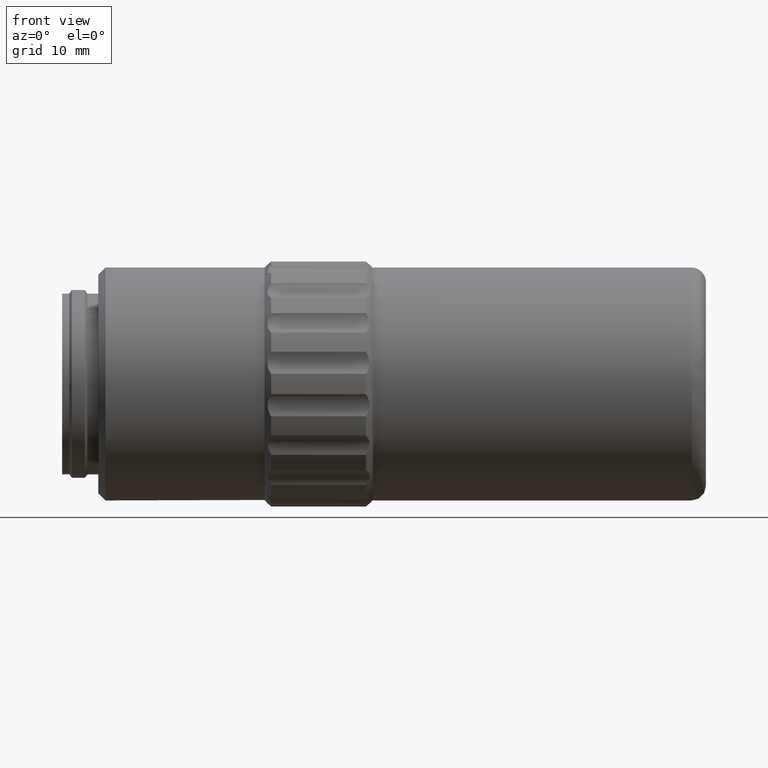
[diagram: clean part render]
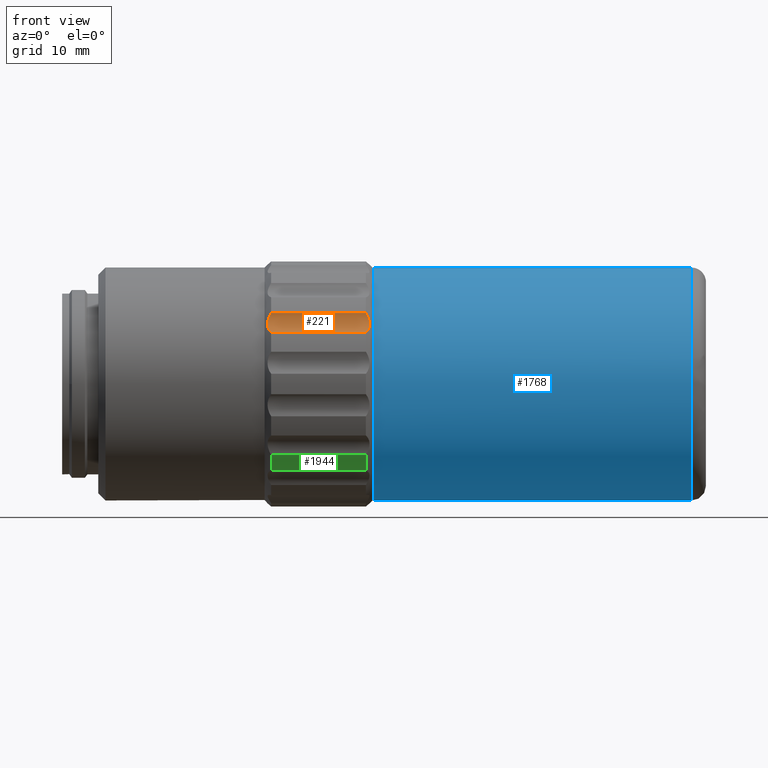
[diagram: same view with three faces highlighted in distinct colors, each labeled with its STEP entity id]
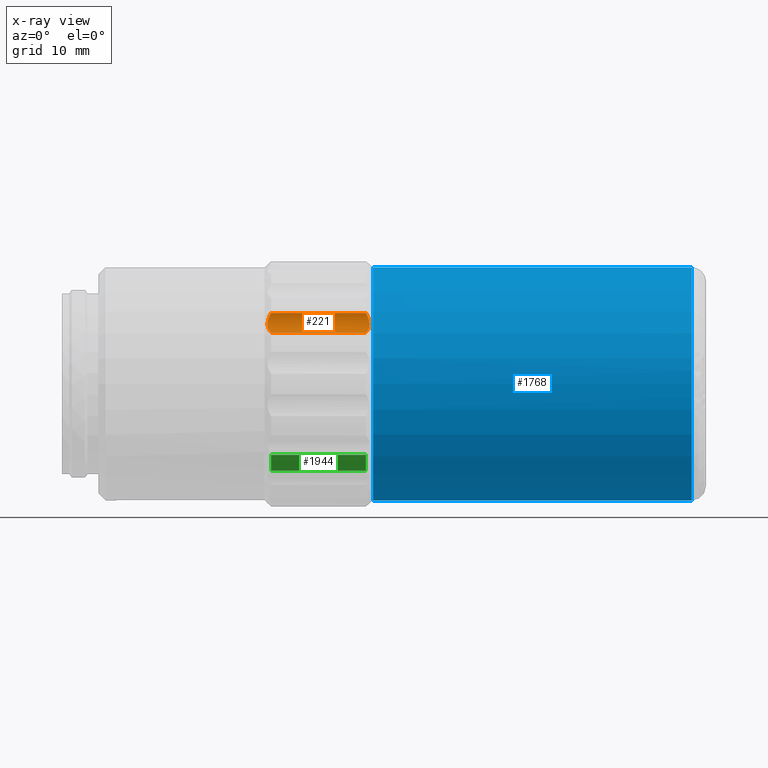
[diagram: x-ray of the same camera — body ghosted, the three highlighted faces saturated]
A machine part, front view with three faces highlighted in distinct colors.
The next image is the same camera in x-ray (body ghosted, the three faces saturated) — at least one of them is partly hidden behind the body in this view.
Their STEP definitions:

[orange] entity #221 — the highlighted cylindrical surface (edge-blend (fillet) strip) has radius 3 mm, axis along (-1, 0, 0).
#30 = CARTESIAN_POINT ( 'NONE',  ( 25.94685803487879738, 30.58621645913229870, 7.125210880294325477 ) ) ;
#37 = CARTESIAN_POINT ( 'NONE',  ( 19.34685803487881017, 32.13297559990991914, 9.804276299192830280 ) ) ;
#68 = CARTESIAN_POINT ( 'NONE',  ( 19.19974036611872137, 32.13747616120598849, 9.555558641669250619 ) ) ;
#101 = DIRECTION ( 'NONE',  ( -1.000000000000000000, 0.000000000000000000, 0.000000000000000000 ) ) ;
#102 = EDGE_CURVE ( 'NONE', #763, #752, #1012, .T. ) ;
#135 = CARTESIAN_POINT ( 'NONE',  ( 32.88806413580806520, 31.40713848021163557, 7.787761549644993231 ) ) ;
#140 = CARTESIAN_POINT ( 'NONE',  ( 19.34685803487881017, 32.13297559990991914, 9.804276299192830280 ) ) ;
#195 = CARTESIAN_POINT ( 'NONE',  ( 19.34685803487881017, 30.58621645913229514, 7.125210880294345905 ) ) ;
#221 = ADVANCED_FACE ( 'NONE', ( #575 ), #898, .F. ) ;
#269 = CARTESIAN_POINT ( 'NONE',  ( 32.85273454226017975, 31.31202075032431154, 7.683006173255041205 ) ) ;
#270 = ORIENTED_EDGE ( 'NONE', *, *, #2050, .F. ) ;
#289 = CARTESIAN_POINT ( 'NONE',  ( 32.44685803487879383, 30.58621645913232356, 7.125210880294359228 ) ) ;
#297 = CARTESIAN_POINT ( 'NONE',  ( 32.94671223884981970, 31.80451600533105250, 8.376639965934812082 ) ) ;
#308 = CARTESIAN_POINT ( 'NONE',  ( 32.93501117040977988, 31.58149741732376725, 8.010141189208871637 ) ) ;
#316 = CARTESIAN_POINT ( 'NONE',  ( 53.58686043487880823, 32.13297559990991914, 9.804276299192837385 ) ) ;
#321 = ORIENTED_EDGE ( 'NONE', *, *, #102, .F. ) ;
#360 = CARTESIAN_POINT ( 'NONE',  ( 18.94160666128826875, 31.31040182005772365, 7.681264582162548926 ) ) ;
#369 = CARTESIAN_POINT ( 'NONE',  ( 19.20000062573680566, 30.80347752111276094, 7.245459005800721108 ) ) ;
#407 = EDGE_LOOP ( 'NONE', ( #766, #1096, #270, #321 ) ) ;
#434 = EDGE_CURVE ( 'NONE', #2001, #1837, #824, .T. ) ;
#450 = CARTESIAN_POINT ( 'NONE',  ( 32.85210940846931038, 32.01351164868641774, 8.899086528648499694 ) ) ;
#468 = CARTESIAN_POINT ( 'NONE',  ( 32.93404516599888865, 31.86752573897096852, 8.507192313874586631 ) ) ;
#529 = DIRECTION ( 'NONE',  ( -1.000000000000000000, 0.000000000000000000, 0.000000000000000000 ) ) ;
#575 = FACE_OUTER_BOUND ( 'NONE', #407, .T. ) ;
#624 = B_SPLINE_CURVE_WITH_KNOTS ( 'NONE', 3,
 ( #765, #2096, #911, #450, #641, #468, #297, #1439, #308, #135, #269, #1746, #1565, #289 ),
 .UNSPECIFIED., .F., .F.,
 ( 4, 2, 2, 2, 2, 2, 4 ),
 ( 1.398578778534940505E-17, 0.0008570537395405541025, 0.001285580609310826112, 0.001714107479081098664, 0.002142634348851370999, 0.002571161218621643117, 0.003428214958162182583 ),
 .UNSPECIFIED. ) ;
#641 = CARTESIAN_POINT ( 'NONE',  ( 32.88671825240741242, 31.97150365186628918, 8.767556099430427352 ) ) ;
#704 = VECTOR ( 'NONE', #838, 1000.000000000000000 ) ;
#716 = CARTESIAN_POINT ( 'NONE',  ( 18.94098152749740649, 32.01281285169061164, 8.896813698364450573 ) ) ;
#752 = VERTEX_POINT ( 'NONE', #195 ) ;
#763 = VERTEX_POINT ( 'NONE', #1297 ) ;
#765 = CARTESIAN_POINT ( 'NONE',  ( 32.44685803487876541, 32.13297559990991914, 9.804276299192837385 ) ) ;
#766 = ORIENTED_EDGE ( 'NONE', *, *, #1529, .F. ) ;
#824 = LINE ( 'NONE', #316, #704 ) ;
#838 = DIRECTION ( 'NONE',  ( 1.000000000000000000, -0.000000000000000000, -0.000000000000000000 ) ) ;
#860 = DIRECTION ( 'NONE',  ( 0.000000000000000000, 0.000000000000000000, 1.000000000000000000 ) ) ;
#866 = CARTESIAN_POINT ( 'NONE',  ( 19.34685803487881017, 30.58621645913229514, 7.125210880294345905 ) ) ;
#898 = CYLINDRICAL_SURFACE ( 'NONE', #2095, 3.000000000000000888 ) ;
#911 = CARTESIAN_POINT ( 'NONE',  ( 32.71832649179923180, 32.11174389140475682, 9.297543592584467831 ) ) ;
#1009 = CARTESIAN_POINT ( 'NONE',  ( 18.90565193394953880, 31.96965089949758365, 8.762061639736753449 ) ) ;
#1012 = LINE ( 'NONE', #30, #1680 ) ;
#1029 = CARTESIAN_POINT ( 'NONE',  ( 18.85967090375871180, 31.57679921079038721, 8.003639195957687136 ) ) ;
#1096 = ORIENTED_EDGE ( 'NONE', *, *, #434, .F. ) ;
#1161 = CARTESIAN_POINT ( 'NONE',  ( 18.84700383090778431, 31.65835599380996968, 8.123483399945440553 ) ) ;
#1173 = CARTESIAN_POINT ( 'NONE',  ( 18.84671480941285182, 31.80217333596834806, 8.372093230236098194 ) ) ;
#1224 = CARTESIAN_POINT ( 'NONE',  ( 32.44685803487876541, 32.13297559990991914, 9.804276299192837385 ) ) ;
#1297 = CARTESIAN_POINT ( 'NONE',  ( 32.44685803487879383, 30.58621645913232356, 7.125210880294359228 ) ) ;
#1439 = CARTESIAN_POINT ( 'NONE',  ( 32.94700126034473442, 31.66112224774798278, 8.127785578975540659 ) ) ;
#1487 = CARTESIAN_POINT ( 'NONE',  ( 18.90699781735017382, 31.40330651472118717, 7.783409789179930982 ) ) ;
#1529 = EDGE_CURVE ( 'NONE', #1837, #763, #624, .T. ) ;
#1565 = CARTESIAN_POINT ( 'NONE',  ( 32.59397570363886842, 30.80386254956549053, 7.245672108642462028 ) ) ;
#1676 = CARTESIAN_POINT ( 'NONE',  ( 19.07378008189505536, 32.11103400804049102, 9.293558664531953895 ) ) ;
#1680 = VECTOR ( 'NONE', #529, 1000.000000000000000 ) ;
#1697 = CARTESIAN_POINT ( 'NONE',  ( 53.58686043487880823, 29.13346662620340055, 9.750000000000000000 ) ) ;
#1746 = CARTESIAN_POINT ( 'NONE',  ( 32.71993598786255575, 31.01754010897460034, 7.399571673583222875 ) ) ;
#1809 = CARTESIAN_POINT ( 'NONE',  ( 19.07538957795835444, 31.01444400173098970, 7.396964432529759215 ) ) ;
#1822 = CARTESIAN_POINT ( 'NONE',  ( 18.85870489934782057, 31.86424395090688932, 8.499872551038858859 ) ) ;
#1837 = VERTEX_POINT ( 'NONE', #1224 ) ;
#2001 = VERTEX_POINT ( 'NONE', #140 ) ;
#2049 = B_SPLINE_CURVE_WITH_KNOTS ( 'NONE', 3,
 ( #866, #369, #1809, #360, #1487, #1029, #1161, #1173, #1822, #1009, #716, #1676, #68, #37 ),
 .UNSPECIFIED., .F., .F.,
 ( 4, 2, 2, 2, 2, 2, 4 ),
 ( 8.887813025444319855E-18, 0.0008570537395405515005, 0.001285580609310827847, 0.001714107479081106254, 0.002142634348851384877, 0.002571161218621663067, 0.003428214958162207303 ),
 .UNSPECIFIED. ) ;
#2050 = EDGE_CURVE ( 'NONE', #752, #2001, #2049, .T. ) ;
#2095 = AXIS2_PLACEMENT_3D ( 'NONE', #1697, #101, #860 ) ;
#2096 = CARTESIAN_POINT ( 'NONE',  ( 32.59371544402078769, 32.13746819945419020, 9.555998637511374127 ) ) ;

[blue] entity #1768 — the highlighted cylindrical surface (bore or boss wall) has radius 16.1 mm, axis along (-1, 0, 0).
#60 = CARTESIAN_POINT ( 'NONE',  ( 77.44685803487880094, 46.02096199999999726, 16.10000000000000142 ) ) ;
#72 = CARTESIAN_POINT ( 'NONE',  ( 44.14685803487879667, 46.02096199999999726, 0.000000000000000000 ) ) ;
#179 = CARTESIAN_POINT ( 'NONE',  ( 33.44685803487879383, 46.02096199999999726, 0.000000000000000000 ) ) ;
#212 = ORIENTED_EDGE ( 'NONE', *, *, #1658, .T. ) ;
#231 = CYLINDRICAL_SURFACE ( 'NONE', #1546, 16.10000000000000142 ) ;
#281 = CIRCLE ( 'NONE', #590, 16.10000000000000142 ) ;
#320 = DIRECTION ( 'NONE',  ( 0.000000000000000000, 0.000000000000000000, 1.000000000000000000 ) ) ;
#509 = DIRECTION ( 'NONE',  ( 0.000000000000000000, 0.000000000000000000, 1.000000000000000000 ) ) ;
#547 = VERTEX_POINT ( 'NONE', #1191 ) ;
#590 = AXIS2_PLACEMENT_3D ( 'NONE', #179, #1491, #320 ) ;
#622 = CARTESIAN_POINT ( 'NONE',  ( 77.44685803487880094, 46.02096199999999726, 0.000000000000000000 ) ) ;
#721 = DIRECTION ( 'NONE',  ( -1.000000000000000000, 0.000000000000000000, 0.000000000000000000 ) ) ;
#1090 = DIRECTION ( 'NONE',  ( 0.000000000000000000, 0.000000000000000000, 1.000000000000000000 ) ) ;
#1170 = FACE_OUTER_BOUND ( 'NONE', #2011, .T. ) ;
#1191 = CARTESIAN_POINT ( 'NONE',  ( 33.44685803487879383, 46.02096199999999726, 16.10000000000000142 ) ) ;
#1274 = DIRECTION ( 'NONE',  ( -1.000000000000000000, 0.000000000000000000, 0.000000000000000000 ) ) ;
#1413 = EDGE_CURVE ( 'NONE', #1496, #1496, #1854, .T. ) ;
#1491 = DIRECTION ( 'NONE',  ( 1.000000000000000000, -0.000000000000000000, -0.000000000000000000 ) ) ;
#1496 = VERTEX_POINT ( 'NONE', #60 ) ;
#1512 = AXIS2_PLACEMENT_3D ( 'NONE', #622, #1274, #1090 ) ;
#1528 = EDGE_LOOP ( 'NONE', ( #212 ) ) ;
#1546 = AXIS2_PLACEMENT_3D ( 'NONE', #72, #721, #509 ) ;
#1658 = EDGE_CURVE ( 'NONE', #547, #547, #281, .T. ) ;
#1686 = FACE_OUTER_BOUND ( 'NONE', #1528, .T. ) ;
#1768 = ADVANCED_FACE ( 'NONE', ( #1170, #1686 ), #231, .T. ) ;
#1854 = CIRCLE ( 'NONE', #1512, 16.10000000000000142 ) ;
#1978 = ORIENTED_EDGE ( 'NONE', *, *, #1413, .T. ) ;
#2011 = EDGE_LOOP ( 'NONE', ( #1978 ) ) ;

[green] entity #1944 — the highlighted cylindrical surface (partial cylindrical patch) has radius 17 mm, axis along (-1, 0, 0).
#39 = EDGE_CURVE ( 'NONE', #1566, #71, #1427, .T. ) ;
#71 = VERTEX_POINT ( 'NONE', #1624 ) ;
#115 = EDGE_CURVE ( 'NONE', #121, #1566, #1309, .T. ) ;
#121 = VERTEX_POINT ( 'NONE', #1813 ) ;
#123 = VECTOR ( 'NONE', #2070, 1000.000000000000000 ) ;
#124 = VECTOR ( 'NONE', #987, 1000.000000000000000 ) ;
#171 = ORIENTED_EDGE ( 'NONE', *, *, #1626, .F. ) ;
#173 = CARTESIAN_POINT ( 'NONE',  ( 25.94685803487879738, 46.02096199999999726, 0.000000000000000000 ) ) ;
#185 = DIRECTION ( 'NONE',  ( 0.000000000000000000, 0.000000000000000000, 1.000000000000000000 ) ) ;
#210 = CARTESIAN_POINT ( 'NONE',  ( 19.34685803487879596, 46.02096199999999726, 0.000000000000000000 ) ) ;
#385 = AXIS2_PLACEMENT_3D ( 'NONE', #700, #517, #829 ) ;
#394 = VERTEX_POINT ( 'NONE', #1659 ) ;
#459 = EDGE_CURVE ( 'NONE', #394, #121, #1334, .T. ) ;
#464 = FACE_OUTER_BOUND ( 'NONE', #1305, .T. ) ;
#489 = CARTESIAN_POINT ( 'NONE',  ( 25.94685803487879738, 32.13297559990998309, -9.804276299192858701 ) ) ;
#505 = DIRECTION ( 'NONE',  ( 0.000000000000000000, 0.000000000000000000, 1.000000000000000000 ) ) ;
#517 = DIRECTION ( 'NONE',  ( 1.000000000000000000, -0.000000000000000000, -0.000000000000000000 ) ) ;
#606 = ORIENTED_EDGE ( 'NONE', *, *, #115, .T. ) ;
#650 = AXIS2_PLACEMENT_3D ( 'NONE', #173, #2088, #185 ) ;
#700 = CARTESIAN_POINT ( 'NONE',  ( 32.44685803487881515, 46.02096199999999726, 0.000000000000000000 ) ) ;
#814 = DIRECTION ( 'NONE',  ( 1.000000000000000000, -0.000000000000000000, -0.000000000000000000 ) ) ;
#829 = DIRECTION ( 'NONE',  ( 0.000000000000000000, 1.000000000000000000, 0.000000000000000000 ) ) ;
#987 = DIRECTION ( 'NONE',  ( -1.000000000000000000, 0.000000000000000000, 0.000000000000000000 ) ) ;
#1038 = ORIENTED_EDGE ( 'NONE', *, *, #459, .T. ) ;
#1305 = EDGE_LOOP ( 'NONE', ( #1038, #606, #1492, #171 ) ) ;
#1309 = CIRCLE ( 'NONE', #1514, 17.00000000000000000 ) ;
#1316 = CARTESIAN_POINT ( 'NONE',  ( 19.34685803487880307, 33.95401115804230585, -11.97450196783888821 ) ) ;
#1334 = LINE ( 'NONE', #489, #124 ) ;
#1427 = LINE ( 'NONE', #1928, #123 ) ;
#1492 = ORIENTED_EDGE ( 'NONE', *, *, #39, .T. ) ;
#1514 = AXIS2_PLACEMENT_3D ( 'NONE', #210, #814, #505 ) ;
#1566 = VERTEX_POINT ( 'NONE', #1316 ) ;
#1624 = CARTESIAN_POINT ( 'NONE',  ( 32.44685803487878673, 33.95401115804229875, -11.97450196783888821 ) ) ;
#1626 = EDGE_CURVE ( 'NONE', #394, #71, #2055, .T. ) ;
#1659 = CARTESIAN_POINT ( 'NONE',  ( 32.44685803487880094, 32.13297559991000441, -9.804276299192871136 ) ) ;
#1796 = CYLINDRICAL_SURFACE ( 'NONE', #650, 17.00000000000000000 ) ;
#1813 = CARTESIAN_POINT ( 'NONE',  ( 19.34685803487878175, 32.13297559991000441, -9.804276299192858701 ) ) ;
#1928 = CARTESIAN_POINT ( 'NONE',  ( 53.58686043487880823, 33.95401115804229875, -11.97450196783888821 ) ) ;
#1944 = ADVANCED_FACE ( 'NONE', ( #464 ), #1796, .T. ) ;
#2055 = CIRCLE ( 'NONE', #385, 16.99999999999998579 ) ;
#2070 = DIRECTION ( 'NONE',  ( 1.000000000000000000, -0.000000000000000000, -0.000000000000000000 ) ) ;
#2088 = DIRECTION ( 'NONE',  ( -1.000000000000000000, 0.000000000000000000, 0.000000000000000000 ) ) ;